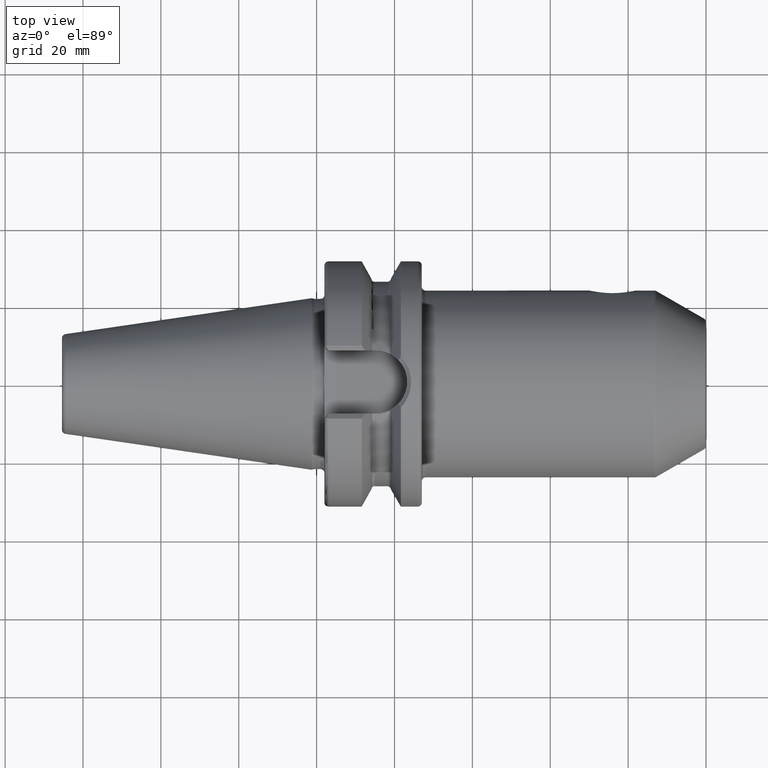
[diagram: clean part render]
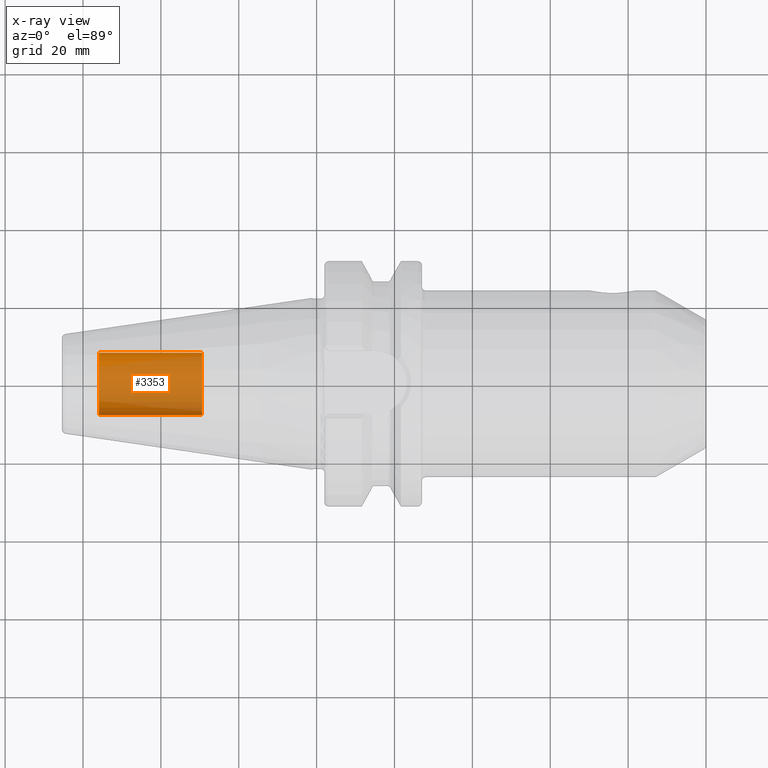
[diagram: x-ray — body ghosted, one internal face saturated and labeled with its STEP entity id]
A machine part, top view, then the same camera in x-ray: the body is ghosted and one INTERNAL B-rep face — a face not visible from any outside direction — is saturated and labeled: STEP entity #3353.
In plain terms, the highlighted cylindrical surface (edge-blend (fillet) strip) has radius 8.0028 mm, axis along (1, 0, 0).
Its self-contained STEP definition (entity closure, byte-faithful):
#3288=CARTESIAN_POINT('',(-5.595E1,0.E0,0.E0));
#3289=DIRECTION('',(-1.E0,0.E0,0.E0));
#3290=DIRECTION('',(0.E0,1.E0,0.E0));
#3291=AXIS2_PLACEMENT_3D('',#3288,#3289,#3290);
#3293=DIRECTION('',(1.E0,0.E0,0.E0));
#3294=VECTOR('',#3293,2.655E1);
#3295=CARTESIAN_POINT('',(-5.595E1,-8.00275E0,0.E0));
#3296=LINE('',#3295,#3294);
#3302=DIRECTION('',(1.E0,0.E0,0.E0));
#3303=VECTOR('',#3302,2.655E1);
#3304=CARTESIAN_POINT('',(-5.595E1,8.00275E0,0.E0));
#3305=LINE('',#3304,#3303);
#3311=CARTESIAN_POINT('',(-2.94E1,0.E0,0.E0));
#3312=DIRECTION('',(1.E0,0.E0,0.E0));
#3313=DIRECTION('',(0.E0,-1.E0,0.E0));
#3314=AXIS2_PLACEMENT_3D('',#3311,#3312,#3313);
#3326=CARTESIAN_POINT('',(-5.595E1,8.00275E0,0.E0));
#3327=CARTESIAN_POINT('',(-5.595E1,-8.00275E0,0.E0));
#3328=VERTEX_POINT('',#3326);
#3329=VERTEX_POINT('',#3327);
#3330=CARTESIAN_POINT('',(-2.94E1,8.00275E0,0.E0));
#3331=CARTESIAN_POINT('',(-2.94E1,-8.00275E0,0.E0));
#3332=VERTEX_POINT('',#3330);
#3333=VERTEX_POINT('',#3331);
#3338=CARTESIAN_POINT('',(-5.595E1,0.E0,0.E0));
#3339=DIRECTION('',(1.E0,0.E0,0.E0));
#3340=DIRECTION('',(0.E0,1.E0,0.E0));
#3341=AXIS2_PLACEMENT_3D('',#3338,#3339,#3340);
#3342=CYLINDRICAL_SURFACE('',#3341,8.00275E0);
#3344=ORIENTED_EDGE('',*,*,#3343,.T.);
#3346=ORIENTED_EDGE('',*,*,#3345,.T.);
#3348=ORIENTED_EDGE('',*,*,#3347,.T.);
#3350=ORIENTED_EDGE('',*,*,#3349,.F.);
#3351=EDGE_LOOP('',(#3344,#3346,#3348,#3350));
#3352=FACE_OUTER_BOUND('',#3351,.F.);
#3353=ADVANCED_FACE('',(#3352),#3342,.T.);
#3292=CIRCLE('',#3291,8.00275E0);
#3315=CIRCLE('',#3314,8.00275E0);
#3343=EDGE_CURVE('',#3328,#3329,#3292,.T.);
#3345=EDGE_CURVE('',#3329,#3333,#3296,.T.);
#3347=EDGE_CURVE('',#3333,#3332,#3315,.T.);
#3349=EDGE_CURVE('',#3328,#3332,#3305,.T.);